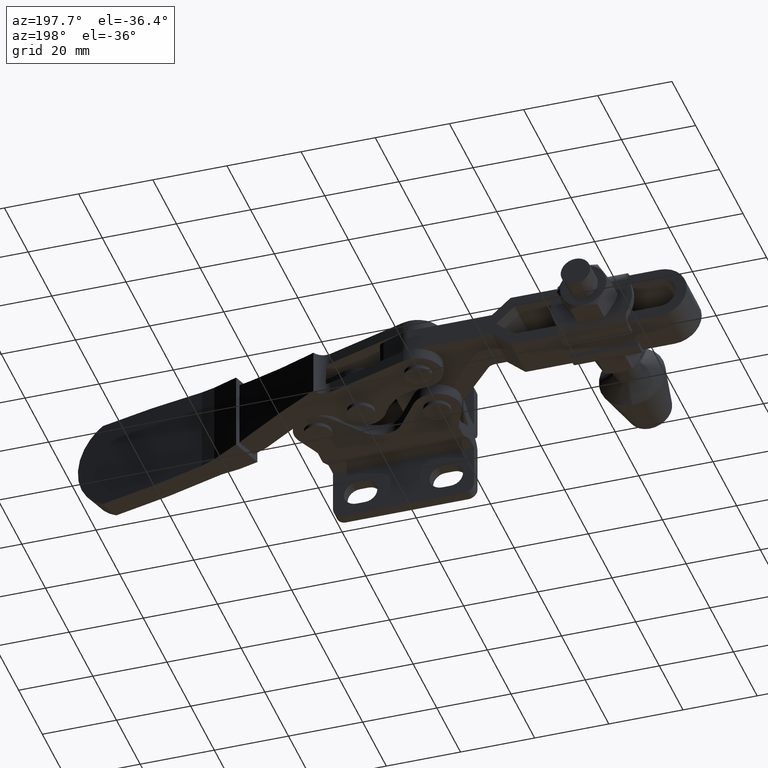
[diagram: clean part render]
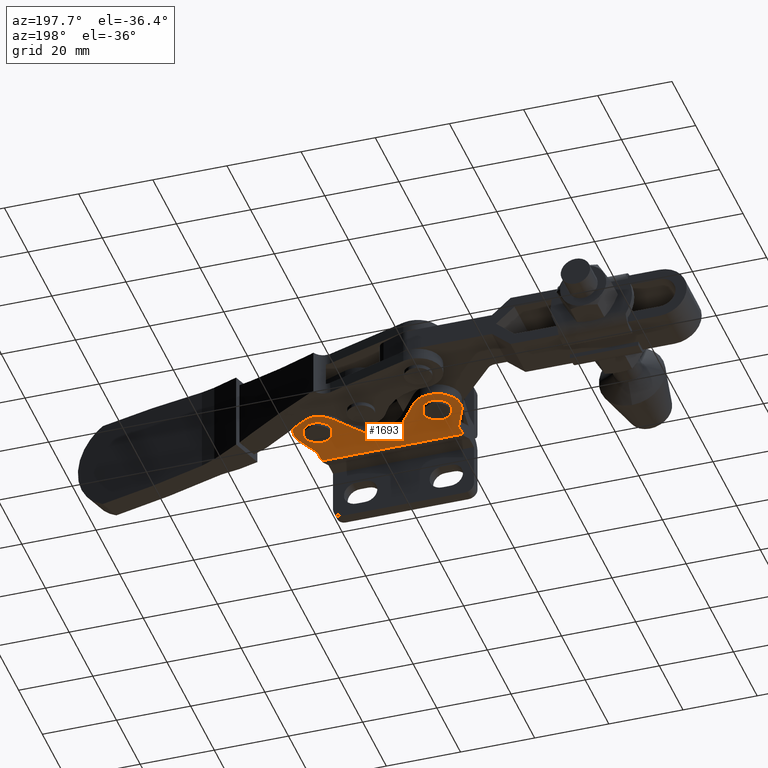
[diagram: same view with one face highlighted and labeled with its STEP entity id]
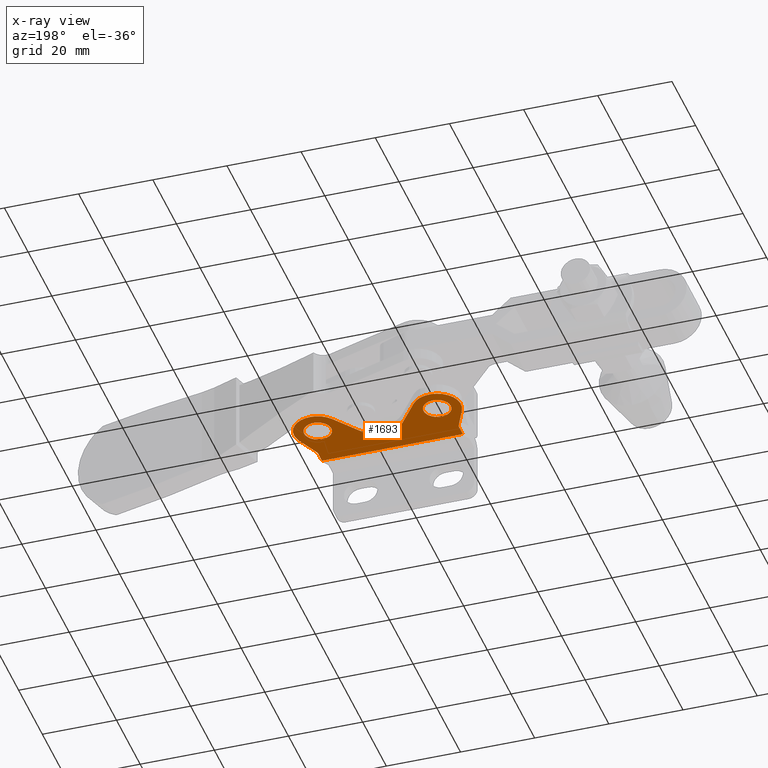
[diagram: x-ray of the same camera — body ghosted, the highlighted face saturated]
A machine part, auxiliary view. The second image highlights one B-rep face of the part: STEP entity #1693.
The next image is the same camera in x-ray: the body ghosted, the highlighted face saturated — about 0% of this face is hidden behind the body in this view.
In plain terms, the highlighted planar face has unit normal (0, 0, 1).
Its self-contained STEP definition (entity closure, byte-faithful):
#66 = EDGE_CURVE ( 'NONE', #6491, #2805, #5553, .T. ) ;
#173 = CARTESIAN_POINT ( 'NONE',  ( 6.400000000000030600, 24.99999707674691900, -6.004190138935547000 ) ) ;
#234 = LINE ( 'NONE', #6453, #2568 ) ;
#283 = DIRECTION ( 'NONE',  ( -0.0000000000000000000, -1.372517863014618000E-016, -1.000000000000000000 ) ) ;
#347 = VECTOR ( 'NONE', #4952, 1000.000000000000000 ) ;
#670 = AXIS2_PLACEMENT_3D ( 'NONE', #8610, #7738, #789 ) ;
#789 = DIRECTION ( 'NONE',  ( 1.000000000000000000, 0.0000000000000000000, 0.0000000000000000000 ) ) ;
#938 = VERTEX_POINT ( 'NONE', #9730 ) ;
#1056 = DIRECTION ( 'NONE',  ( 1.000000000000000000, 0.0000000000000000000, 0.0000000000000000000 ) ) ;
#1109 = VERTEX_POINT ( 'NONE', #2380 ) ;
#1115 = ORIENTED_EDGE ( 'NONE', *, *, #11086, .F. ) ;
#1145 = DIRECTION ( 'NONE',  ( 0.0000000000000000000, -1.372517863014618000E-016, 1.000000000000000000 ) ) ;
#1215 = DIRECTION ( 'NONE',  ( 0.4184571085544567200, -0.9082365596584645000, 0.0000000000000000000 ) ) ;
#1284 = EDGE_CURVE ( 'NONE', #11205, #9266, #1573, .T. ) ;
#1286 = AXIS2_PLACEMENT_3D ( 'NONE', #8645, #4372, #7852 ) ;
#1476 = VERTEX_POINT ( 'NONE', #8837 ) ;
#1513 = EDGE_LOOP ( 'NONE', ( #1973, #3998 ) ) ;
#1538 = DIRECTION ( 'NONE',  ( -0.5983401032940269800, -0.8012422360248447900, 0.0000000000000000000 ) ) ;
#1555 = CARTESIAN_POINT ( 'NONE',  ( 17.29192546583837900, 21.11078640533569800, -6.004190138936302800 ) ) ;
#1573 = LINE ( 'NONE', #9872, #8219 ) ;
#1613 = CIRCLE ( 'NONE', #3781, 6.399999999999933700 ) ;
#1693 = ADVANCED_FACE ( 'NONE', ( #8532, #3927, #1894 ), #6938, .F. ) ;
#1753 = CARTESIAN_POINT ( 'NONE',  ( 38.59999999999968900, 24.99999707674676200, -6.004190138936302800 ) ) ;
#1813 = DIRECTION ( 'NONE',  ( -0.0000000000000000000, -1.372517863014618000E-016, -1.000000000000000000 ) ) ;
#1871 = DIRECTION ( 'NONE',  ( -1.000000000000000000, 0.0000000000000000000, 0.0000000000000000000 ) ) ;
#1894 = FACE_OUTER_BOUND ( 'NONE', #5870, .T. ) ;
#1973 = ORIENTED_EDGE ( 'NONE', *, *, #7641, .T. ) ;
#2035 = ORIENTED_EDGE ( 'NONE', *, *, #7111, .F. ) ;
#2154 = DIRECTION ( 'NONE',  ( 0.0000000000000000000, 0.0000000000000000000, -1.000000000000000000 ) ) ;
#2197 = ORIENTED_EDGE ( 'NONE', *, *, #2721, .F. ) ;
#2327 = VERTEX_POINT ( 'NONE', #4954 ) ;
#2380 = CARTESIAN_POINT ( 'NONE',  ( 34.92499999999968500, 24.99999707674676200, -6.004190138936306400 ) ) ;
#2568 = VECTOR ( 'NONE', #10815, 1000.000000000000200 ) ;
#2622 = DIRECTION ( 'NONE',  ( 1.000000000000000000, 0.0000000000000000000, 0.0000000000000000000 ) ) ;
#2652 = LINE ( 'NONE', #7055, #9547 ) ;
#2687 = EDGE_CURVE ( 'NONE', #2327, #9356, #2841, .T. ) ;
#2721 = EDGE_CURVE ( 'NONE', #6506, #10471, #234, .T. ) ;
#2730 = ORIENTED_EDGE ( 'NONE', *, *, #3228, .F. ) ;
#2805 = VERTEX_POINT ( 'NONE', #6668 ) ;
#2841 = LINE ( 'NONE', #6421, #3114 ) ;
#2896 = CARTESIAN_POINT ( 'NONE',  ( 11.52795031055901700, 28.82937373782860000, -6.004190138936302800 ) ) ;
#2927 = LINE ( 'NONE', #7598, #4960 ) ;
#3114 = VECTOR ( 'NONE', #3845, 1000.000000000000000 ) ;
#3204 = CARTESIAN_POINT ( 'NONE',  ( 3.499999999999806800, 15.56141716752486900, -6.004190138936302800 ) ) ;
#3206 = VECTOR ( 'NONE', #1215, 1000.000000000000200 ) ;
#3228 = EDGE_CURVE ( 'NONE', #1476, #1109, #4039, .T. ) ;
#3463 = CIRCLE ( 'NONE', #3681, 6.399999999999926600 ) ;
#3588 = EDGE_CURVE ( 'NONE', #1109, #1476, #10678, .T. ) ;
#3681 = AXIS2_PLACEMENT_3D ( 'NONE', #4119, #10171, #4994 ) ;
#3752 = LINE ( 'NONE', #7280, #3206 ) ;
#3781 = AXIS2_PLACEMENT_3D ( 'NONE', #1753, #7808, #2622 ) ;
#3845 = DIRECTION ( 'NONE',  ( 0.0000000000000000000, 1.000000000000000000, 0.0000000000000000000 ) ) ;
#3917 = AXIS2_PLACEMENT_3D ( 'NONE', #10352, #5178, #11238 ) ;
#3927 = FACE_BOUND ( 'NONE', #9377, .T. ) ;
#3940 = CARTESIAN_POINT ( 'NONE',  ( 41.50000000000010700, 15.56141716752483900, -6.004190138936302800 ) ) ;
#3998 = ORIENTED_EDGE ( 'NONE', *, *, #10999, .T. ) ;
#4039 = CIRCLE ( 'NONE', #5680, 3.675000000000001200 ) ;
#4119 = CARTESIAN_POINT ( 'NONE',  ( 6.400000000000034100, 24.99999707674691900, -6.004190138936302800 ) ) ;
#4353 = ORIENTED_EDGE ( 'NONE', *, *, #5258, .F. ) ;
#4372 = DIRECTION ( 'NONE',  ( 0.0000000000000000000, 1.372517863014618000E-016, 1.000000000000000000 ) ) ;
#4466 = CARTESIAN_POINT ( 'NONE',  ( 3.499999999999807700, 15.56141716752486900, -6.004190138936302800 ) ) ;
#4543 = EDGE_CURVE ( 'NONE', #2327, #10169, #2652, .T. ) ;
#4579 = ORIENTED_EDGE ( 'NONE', *, *, #8531, .F. ) ;
#4677 = AXIS2_PLACEMENT_3D ( 'NONE', #6993, #1813, #7869 ) ;
#4952 = DIRECTION ( 'NONE',  ( 1.114759106724995400E-016, -1.000000000000000000, 0.0000000000000000000 ) ) ;
#4954 = CARTESIAN_POINT ( 'NONE',  ( 41.50000000000010700, 12.44151730694707700, -6.004190138936303700 ) ) ;
#4960 = VECTOR ( 'NONE', #1538, 1000.000000000000200 ) ;
#4961 = EDGE_CURVE ( 'NONE', #7200, #11205, #9540, .T. ) ;
#4994 = DIRECTION ( 'NONE',  ( 1.000000000000000000, 0.0000000000000000000, 0.0000000000000000000 ) ) ;
#5119 = ORIENTED_EDGE ( 'NONE', *, *, #3588, .F. ) ;
#5120 = CARTESIAN_POINT ( 'NONE',  ( 22.49999999999986500, 24.99999707674679400, -6.004190138936302800 ) ) ;
#5178 = DIRECTION ( 'NONE',  ( 0.0000000000000000000, 0.0000000000000000000, -1.000000000000000000 ) ) ;
#5258 = EDGE_CURVE ( 'NONE', #938, #5600, #8727, .T. ) ;
#5504 = CARTESIAN_POINT ( 'NONE',  ( 38.59999999999968200, 24.99999707674676200, -6.004190138936306400 ) ) ;
#5553 = CIRCLE ( 'NONE', #670, 6.399999999999933700 ) ;
#5600 = VERTEX_POINT ( 'NONE', #4466 ) ;
#5604 = CARTESIAN_POINT ( 'NONE',  ( 44.41271398181384500, 22.32187158199836600, -6.004190138936302800 ) ) ;
#5680 = AXIS2_PLACEMENT_3D ( 'NONE', #5504, #283, #6363 ) ;
#5870 = EDGE_LOOP ( 'NONE', ( #9878, #8958, #8520, #4353, #1115, #2035, #7765, #6953, #9900, #10366, #10093, #2197, #4579 ) ) ;
#5983 = DIRECTION ( 'NONE',  ( 1.000000000000000000, 0.0000000000000000000, 0.0000000000000000000 ) ) ;
#6133 = CARTESIAN_POINT ( 'NONE',  ( 0.5872860181859266300, 22.32187158199843000, -6.004190138936302800 ) ) ;
#6250 = DIRECTION ( 'NONE',  ( 0.0000000000000000000, -1.372517863014618000E-016, 1.000000000000000000 ) ) ;
#6334 = CARTESIAN_POINT ( 'NONE',  ( 6.400000000000030600, 24.99999707674691900, -6.004190138935547000 ) ) ;
#6363 = DIRECTION ( 'NONE',  ( 0.0000000000000000000, -1.000000000000000000, 2.360167994526267400E-016 ) ) ;
#6421 = CARTESIAN_POINT ( 'NONE',  ( 41.50000000000010700, 15.56141716752483900, -6.004190138936302800 ) ) ;
#6453 = CARTESIAN_POINT ( 'NONE',  ( 41.68352688068315400, 16.39833138463372800, -6.004190138936302800 ) ) ;
#6491 = VERTEX_POINT ( 'NONE', #6666 ) ;
#6506 = VERTEX_POINT ( 'NONE', #10993 ) ;
#6666 = CARTESIAN_POINT ( 'NONE',  ( 44.99999999999962300, 24.99999707674676200, -6.004190138936302800 ) ) ;
#6668 = CARTESIAN_POINT ( 'NONE',  ( 33.47204968944073800, 28.82937373782849400, -6.004190138936302800 ) ) ;
#6761 = CARTESIAN_POINT ( 'NONE',  ( 3.499999999999814800, 12.44151730694707700, -6.004190138936302800 ) ) ;
#6938 = PLANE ( 'NONE',  #1286 ) ;
#6953 = ORIENTED_EDGE ( 'NONE', *, *, #4961, .F. ) ;
#6993 = CARTESIAN_POINT ( 'NONE',  ( 38.59999999999968200, 24.99999707674676200, -6.004190138936306400 ) ) ;
#7055 = CARTESIAN_POINT ( 'NONE',  ( 45.00000000000000700, 12.44151730694661700, -6.004190138936304600 ) ) ;
#7111 = EDGE_CURVE ( 'NONE', #9266, #8055, #3463, .T. ) ;
#7144 = EDGE_CURVE ( 'NONE', #2805, #7200, #2927, .T. ) ;
#7200 = VERTEX_POINT ( 'NONE', #9896 ) ;
#7206 = DIRECTION ( 'NONE',  ( 1.000000000000000000, 0.0000000000000000000, 0.0000000000000000000 ) ) ;
#7230 = DIRECTION ( 'NONE',  ( -0.5983401032940198800, 0.8012422360248500100, 0.0000000000000000000 ) ) ;
#7280 = CARTESIAN_POINT ( 'NONE',  ( 3.316473119316738000, 16.39833138463377800, -6.004190138936302800 ) ) ;
#7344 = CARTESIAN_POINT ( 'NONE',  ( 1.499999999999819700, 15.56141716752486900, -6.004190138936302800 ) ) ;
#7381 = CIRCLE ( 'NONE', #7909, 3.674999999999999400 ) ;
#7519 = VERTEX_POINT ( 'NONE', #9505 ) ;
#7544 = LINE ( 'NONE', #3204, #347 ) ;
#7598 = CARTESIAN_POINT ( 'NONE',  ( 27.70807453416131900, 21.11078640533565200, -6.004190138936302800 ) ) ;
#7632 = VERTEX_POINT ( 'NONE', #7930 ) ;
#7641 = EDGE_CURVE ( 'NONE', #7519, #7632, #7381, .T. ) ;
#7738 = DIRECTION ( 'NONE',  ( 0.0000000000000000000, 0.0000000000000000000, 1.000000000000000000 ) ) ;
#7765 = ORIENTED_EDGE ( 'NONE', *, *, #1284, .F. ) ;
#7799 = AXIS2_PLACEMENT_3D ( 'NONE', #7344, #2154, #8215 ) ;
#7808 = DIRECTION ( 'NONE',  ( 0.0000000000000000000, 0.0000000000000000000, 1.000000000000000000 ) ) ;
#7852 = DIRECTION ( 'NONE',  ( 0.0000000000000000000, 1.000000000000000000, -1.372517863014618000E-016 ) ) ;
#7869 = DIRECTION ( 'NONE',  ( 0.0000000000000000000, -1.000000000000000000, 2.360167994526267400E-016 ) ) ;
#7909 = AXIS2_PLACEMENT_3D ( 'NONE', #173, #6250, #1056 ) ;
#7930 = CARTESIAN_POINT ( 'NONE',  ( 2.725000000000030700, 24.99999707674691900, -6.004190138935547000 ) ) ;
#8055 = VERTEX_POINT ( 'NONE', #6133 ) ;
#8215 = DIRECTION ( 'NONE',  ( 1.000000000000000000, 0.0000000000000000000, 0.0000000000000000000 ) ) ;
#8219 = VECTOR ( 'NONE', #7230, 1000.000000000000300 ) ;
#8520 = ORIENTED_EDGE ( 'NONE', *, *, #10626, .F. ) ;
#8531 = EDGE_CURVE ( 'NONE', #9356, #6506, #8701, .T. ) ;
#8532 = FACE_BOUND ( 'NONE', #1513, .T. ) ;
#8610 = CARTESIAN_POINT ( 'NONE',  ( 38.59999999999968900, 24.99999707674676200, -6.004190138936302800 ) ) ;
#8645 = CARTESIAN_POINT ( 'NONE',  ( 45.00000000000000700, 31.39999707674687100, -6.004190138936307300 ) ) ;
#8701 = CIRCLE ( 'NONE', #3917, 2.000000000000015500 ) ;
#8727 = CIRCLE ( 'NONE', #7799, 1.999999999999988000 ) ;
#8837 = CARTESIAN_POINT ( 'NONE',  ( 42.27499999999967900, 24.99999707674676200, -6.004190138936306400 ) ) ;
#8958 = ORIENTED_EDGE ( 'NONE', *, *, #4543, .T. ) ;
#9266 = VERTEX_POINT ( 'NONE', #2896 ) ;
#9356 = VERTEX_POINT ( 'NONE', #3940 ) ;
#9377 = EDGE_LOOP ( 'NONE', ( #2730, #5119 ) ) ;
#9505 = CARTESIAN_POINT ( 'NONE',  ( 10.07500000000002900, 24.99999707674691900, -6.004190138935547000 ) ) ;
#9540 = CIRCLE ( 'NONE', #11142, 6.499999999999950300 ) ;
#9547 = VECTOR ( 'NONE', #1871, 1000.000000000000000 ) ;
#9676 = EDGE_CURVE ( 'NONE', #10471, #6491, #1613, .T. ) ;
#9730 = CARTESIAN_POINT ( 'NONE',  ( 3.316473119316738000, 16.39833138463377800, -6.004190138936302800 ) ) ;
#9872 = CARTESIAN_POINT ( 'NONE',  ( 17.29192546583837900, 21.11078640533569800, -6.004190138936302800 ) ) ;
#9878 = ORIENTED_EDGE ( 'NONE', *, *, #2687, .F. ) ;
#9896 = CARTESIAN_POINT ( 'NONE',  ( 27.70807453416131900, 21.11078640533565200, -6.004190138936302800 ) ) ;
#9900 = ORIENTED_EDGE ( 'NONE', *, *, #7144, .F. ) ;
#10093 = ORIENTED_EDGE ( 'NONE', *, *, #9676, .F. ) ;
#10169 = VERTEX_POINT ( 'NONE', #6761 ) ;
#10171 = DIRECTION ( 'NONE',  ( 0.0000000000000000000, 0.0000000000000000000, 1.000000000000000000 ) ) ;
#10242 = AXIS2_PLACEMENT_3D ( 'NONE', #6334, #1145, #7206 ) ;
#10352 = CARTESIAN_POINT ( 'NONE',  ( 43.50000000000011400, 15.56141716752483900, -6.004190138936302800 ) ) ;
#10366 = ORIENTED_EDGE ( 'NONE', *, *, #66, .F. ) ;
#10383 = CIRCLE ( 'NONE', #10242, 3.674999999999999400 ) ;
#10471 = VERTEX_POINT ( 'NONE', #5604 ) ;
#10626 = EDGE_CURVE ( 'NONE', #5600, #10169, #7544, .T. ) ;
#10678 = CIRCLE ( 'NONE', #4677, 3.675000000000001200 ) ;
#10815 = DIRECTION ( 'NONE',  ( 0.4184571085544416800, 0.9082365596584713900, 0.0000000000000000000 ) ) ;
#10993 = CARTESIAN_POINT ( 'NONE',  ( 41.68352688068316100, 16.39833138463372800, -6.004190138936302800 ) ) ;
#10999 = EDGE_CURVE ( 'NONE', #7632, #7519, #10383, .T. ) ;
#11086 = EDGE_CURVE ( 'NONE', #8055, #938, #3752, .T. ) ;
#11142 = AXIS2_PLACEMENT_3D ( 'NONE', #5120, #11180, #5983 ) ;
#11180 = DIRECTION ( 'NONE',  ( 0.0000000000000000000, 0.0000000000000000000, -1.000000000000000000 ) ) ;
#11205 = VERTEX_POINT ( 'NONE', #1555 ) ;
#11238 = DIRECTION ( 'NONE',  ( 1.000000000000000000, 0.0000000000000000000, 0.0000000000000000000 ) ) ;